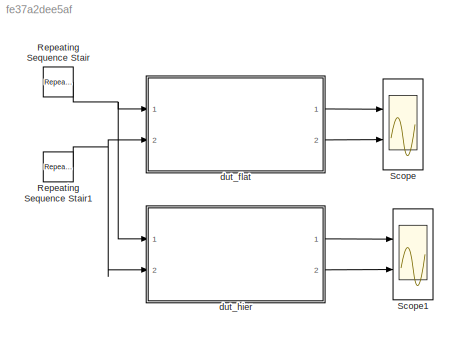
MODEL slx_fe37a2dee5af
KIND model
CONFIG AbsTol = auto
CONFIG FixedStep = auto
CONFIG MaxStep = auto
CONFIG MinStep = auto
CONFIG RelTol = 1e-3
CONFIG SampleTimeConstraint = Unconstrained
CONFIG Solver = FixedStepDiscrete
CONFIG SolverMode = SingleTasking
CONFIG SolverName = FixedStepDiscrete
CONFIG StartTime = 0.0
CONFIG StopTime = 10.0
BLOCK [Reference] Repeating Sequence Stair  REF=simulink/Sources/Repeating
Sequence
Stair
  Ports = [0, 1]
  SourceBlock = simulink/Sources/Repeating\nSequence\nStair
  SourceType = Repeating Sequence Stair
BLOCK [Reference] Repeating Sequence Stair1  REF=simulink/Sources/Repeating
Sequence
Stair
  Ports = [0, 1]
  SourceBlock = simulink/Sources/Repeating\nSequence\nStair
  SourceType = Repeating Sequence Stair
BLOCK [Scope] Scope
  NumInputPorts = 2
  Ports = [2]
  ScopeSpecificationString = Simulink.scopes.TimeScopeBlockCfg('CurrentConfiguration', extmgr.ConfigurationSet(extmgr.Configuration('Core','General UI',true),extmgr.Configuration('Core','Source UI',true),extmgr.Configuration('Sources','WiredSimulink',true,'DataLoggingSaveFormat','StructureWithTime','DataLoggingLimitDataPoints',true,'DataLoggingDecimation','1','DataLoggingDecimateData',true),extmgr.Configuration('Visuals','Tim...<+2445ch>
BLOCK [Scope] Scope1
  NumInputPorts = 2
  Ports = [2]
  ScopeSpecificationString = C++SS(StrPVP('Location','[1025, 200, 1349, 439]'),StrPVP('Open','off'),MxPVP('AxesTitles',24,'struct(''axes1'',''%<SignalLabel>'',''axes2'',''%<SignalLabel>'')'),StrPVP('YMin','-5~-5'),StrPVP('YMax','5~5'),StrPVP('SaveName','ScopeData1'),StrPVP('DataFormat','StructureWithTime'),StrPVP('BlockParamSampleTime','0'),StrPVP('LimitDataPoints','on'),StrPVP('Decimation','1'),StrPVP('BlockParamSampleInput'...<+8ch>
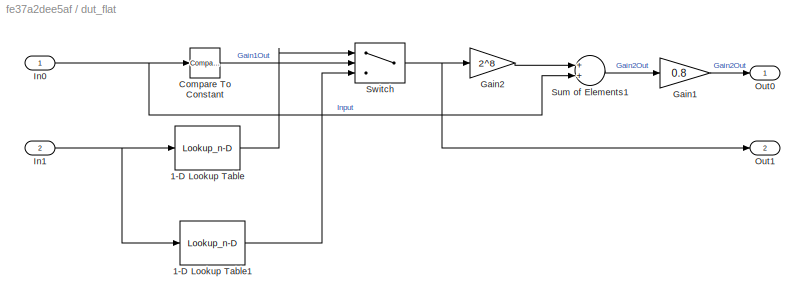
BLOCK [SubSystem] dut_flat
  Ports = [2, 2]
  RequestExecContextInheritance = off
  Variant = off
BLOCK [Lookup_n-D] dut_flat/1-D Lookup Table
  BreakpointsForDimension1 = [0:255]
  DiagnosticForOutOfRangeInput = Error
  IndexSearchMethod = Evenly spaced points
  InterpMethod = Flat
  NumberOfTableDimensions = 1
  OutDataTypeStr = fixdt(1,16,14)
  Ports = [1, 1]
  RndMeth = Zero
  Table = atan(([0:255]-128)/128*5)
BLOCK [Lookup_n-D] dut_flat/1-D Lookup Table1
  BreakpointsForDimension1 = [0:255]
  DiagnosticForOutOfRangeInput = Error
  IndexSearchMethod = Evenly spaced points
  InterpMethod = Flat
  NumberOfTableDimensions = 1
  OutDataTypeStr = fixdt(1,16,14)
  Ports = [1, 1]
  RndMeth = Zero
  Table = tanh(([0:255]-128)/128*5)
BLOCK [Reference] dut_flat/Compare To Constant  REF=simulink/Logic and Bit
Operations/Compare
To Constant
  Ports = [1, 1]
  SourceBlock = simulink/Logic and Bit\nOperations/Compare\nTo Constant
  SourceType = Compare To Constant
BLOCK [Gain] dut_flat/Gain1
  Gain = 0.8
  ParamDataTypeStr = Inherit: Inherit via internal rule
  RndMeth = Nearest
  SaturateOnIntegerOverflow = off
BLOCK [Gain] dut_flat/Gain2
  Gain = 2^8
  OutDataTypeStr = fixdt(1,16,6)
  ParamDataTypeStr = Inherit: Inherit via internal rule
  RndMeth = Nearest
  SaturateOnIntegerOverflow = off
BLOCK [Inport] dut_flat/In0
  IconDisplay = Port number
BLOCK [Inport] dut_flat/In1
  IconDisplay = Port number
  Port = 2
BLOCK [Outport] dut_flat/Out0
  IconDisplay = Port number
BLOCK [Outport] dut_flat/Out1
  IconDisplay = Port number
  Port = 2
BLOCK [Sum] dut_flat/Sum of Elements1
  InputSameDT = off
  Ports = [2, 1]
  SaturateOnIntegerOverflow = off
BLOCK [Switch] dut_flat/Switch
  Criteria = u2 ~= 0
  InputSameDT = off
  SaturateOnIntegerOverflow = off
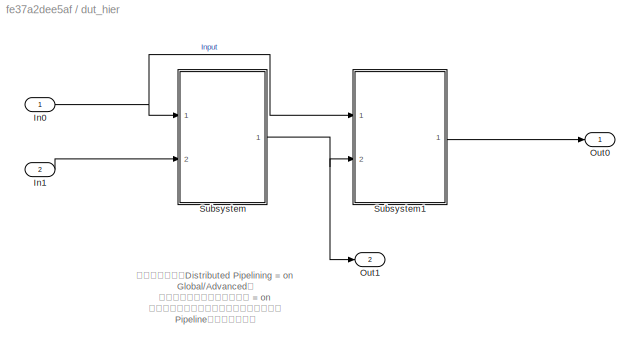
BLOCK [SubSystem] dut_hier
  Ports = [2, 2]
  RequestExecContextInheritance = off
  Variant = off
BLOCK [Inport] dut_hier/In0
  IconDisplay = Port number
BLOCK [Inport] dut_hier/In1
  IconDisplay = Port number
  Port = 2
BLOCK [Outport] dut_hier/Out0
  IconDisplay = Port number
BLOCK [Outport] dut_hier/Out1
  IconDisplay = Port number
  Port = 2
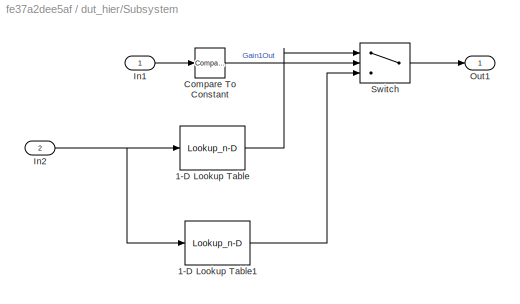
BLOCK [SubSystem] dut_hier/Subsystem
  Ports = [2, 1]
  RequestExecContextInheritance = off
  Variant = off
BLOCK [Lookup_n-D] dut_hier/Subsystem/1-D Lookup Table
  BreakpointsForDimension1 = [0:255]
  DiagnosticForOutOfRangeInput = Error
  IndexSearchMethod = Evenly spaced points
  InterpMethod = Flat
  NumberOfTableDimensions = 1
  OutDataTypeStr = fixdt(1,16,14)
  Ports = [1, 1]
  RndMeth = Zero
  Table = atan(([0:255]-128)/128*5)
BLOCK [Lookup_n-D] dut_hier/Subsystem/1-D Lookup Table1
  BreakpointsForDimension1 = [0:255]
  DiagnosticForOutOfRangeInput = Error
  IndexSearchMethod = Evenly spaced points
  InterpMethod = Flat
  NumberOfTableDimensions = 1
  OutDataTypeStr = fixdt(1,16,14)
  Ports = [1, 1]
  RndMeth = Zero
  Table = tanh(([0:255]-128)/128*5)
BLOCK [Reference] dut_hier/Subsystem/Compare To Constant  REF=simulink/Logic and Bit
Operations/Compare
To Constant
  Ports = [1, 1]
  SourceBlock = simulink/Logic and Bit\nOperations/Compare\nTo Constant
  SourceType = Compare To Constant
BLOCK [Inport] dut_hier/Subsystem/In1
  IconDisplay = Port number
BLOCK [Inport] dut_hier/Subsystem/In2
  IconDisplay = Port number
  Port = 2
BLOCK [Outport] dut_hier/Subsystem/Out1
  IconDisplay = Port number
BLOCK [Switch] dut_hier/Subsystem/Switch
  Criteria = u2 ~= 0
  InputSameDT = off
  SaturateOnIntegerOverflow = off
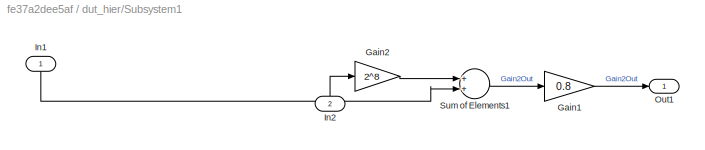
BLOCK [SubSystem] dut_hier/Subsystem1
  Ports = [2, 1]
  RequestExecContextInheritance = off
  Variant = off
BLOCK [Gain] dut_hier/Subsystem1/Gain1
  Gain = 0.8
  ParamDataTypeStr = Inherit: Inherit via internal rule
  RndMeth = Nearest
  SaturateOnIntegerOverflow = off
BLOCK [Gain] dut_hier/Subsystem1/Gain2
  Gain = 2^8
  OutDataTypeStr = fixdt(1,16,6)
  ParamDataTypeStr = Inherit: Inherit via internal rule
  RndMeth = Nearest
  SaturateOnIntegerOverflow = off
BLOCK [Inport] dut_hier/Subsystem1/In1
  IconDisplay = Port number
BLOCK [Inport] dut_hier/Subsystem1/In2
  IconDisplay = Port number
  Port = 2
BLOCK [Outport] dut_hier/Subsystem1/Out1
  IconDisplay = Port number
BLOCK [Sum] dut_hier/Subsystem1/Sum of Elements1
  InputSameDT = off
  Ports = [2, 1]
  SaturateOnIntegerOverflow = off
ANNOTATION dut_hier: サブシステムのDistributed Pipelining = on Global/Advancedの 階層分布型パイプライン方式 = on に設定するとサブシステム階層をまたいで Pipelineが挿入される。
NET Repeating Sequence Stair1:1 -> dut_flat:2, dut_hier:2
NET Repeating Sequence Stair:1 -> dut_flat:1, dut_hier:1
LINE dut_flat/1-D Lookup Table1:1 -> dut_flat/Switch:3
LINE dut_flat/1-D Lookup Table:1 -> dut_flat/Switch:1
LINE dut_flat/Compare To Constant:1 -> dut_flat/Switch:2
LINE dut_flat/Gain1:1 -> dut_flat/Out0:1
LINE dut_flat/Gain2:1 -> dut_flat/Sum of Elements1:1
NET dut_flat/In0:1 -> dut_flat/Compare To Constant:1, dut_flat/Sum of Elements1:2
NET dut_flat/In1:1 -> dut_flat/1-D Lookup Table1:1, dut_flat/1-D Lookup Table:1
LINE dut_flat/Sum of Elements1:1 -> dut_flat/Gain1:1
NET dut_flat/Switch:1 -> dut_flat/Gain2:1, dut_flat/Out1:1
LINE dut_flat:1 -> Scope:1
LINE dut_flat:2 -> Scope:2
NET dut_hier/In0:1 -> dut_hier/Subsystem1:1, dut_hier/Subsystem:1
LINE dut_hier/In1:1 -> dut_hier/Subsystem:2
LINE dut_hier/Subsystem/1-D Lookup Table1:1 -> dut_hier/Subsystem/Switch:3
LINE dut_hier/Subsystem/1-D Lookup Table:1 -> dut_hier/Subsystem/Switch:1
LINE dut_hier/Subsystem/Compare To Constant:1 -> dut_hier/Subsystem/Switch:2
LINE dut_hier/Subsystem/In1:1 -> dut_hier/Subsystem/Compare To Constant:1
NET dut_hier/Subsystem/In2:1 -> dut_hier/Subsystem/1-D Lookup Table1:1, dut_hier/Subsystem/1-D Lookup Table:1
LINE dut_hier/Subsystem/Switch:1 -> dut_hier/Subsystem/Out1:1
LINE dut_hier/Subsystem1/Gain1:1 -> dut_hier/Subsystem1/Out1:1
LINE dut_hier/Subsystem1/Gain2:1 -> dut_hier/Subsystem1/Sum of Elements1:1
LINE dut_hier/Subsystem1/In1:1 -> dut_hier/Subsystem1/Sum of Elements1:2
LINE dut_hier/Subsystem1/In2:1 -> dut_hier/Subsystem1/Gain2:1
LINE dut_hier/Subsystem1/Sum of Elements1:1 -> dut_hier/Subsystem1/Gain1:1
LINE dut_hier/Subsystem1:1 -> dut_hier/Out0:1
NET dut_hier/Subsystem:1 -> dut_hier/Out1:1, dut_hier/Subsystem1:2
LINE dut_hier:1 -> Scope1:1
LINE dut_hier:2 -> Scope1:2
note: NET lines group one-source signal fan-out (src -> all destinations, sorted); 1:1 wires keep LINE
